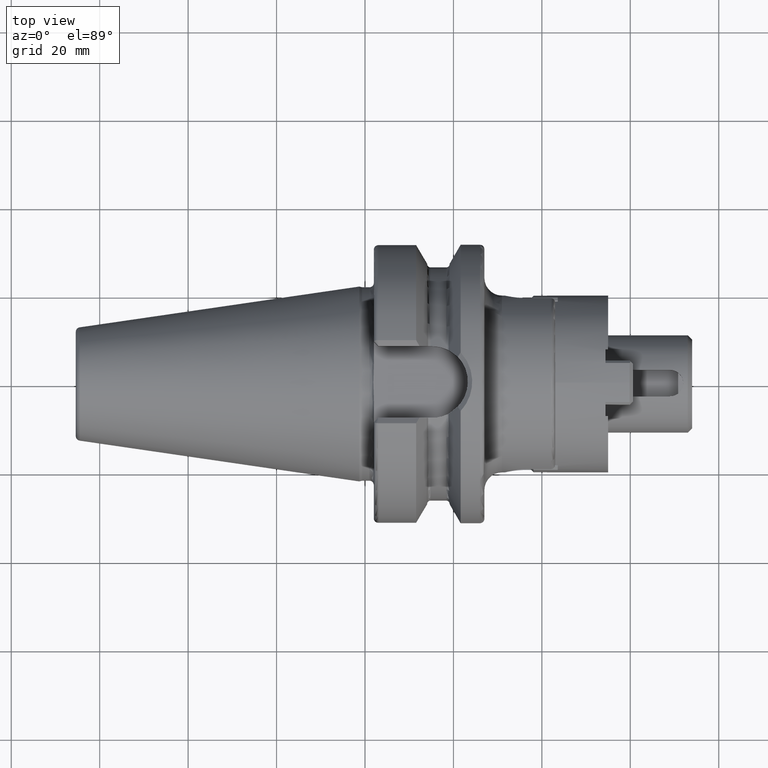
[diagram: clean part render]
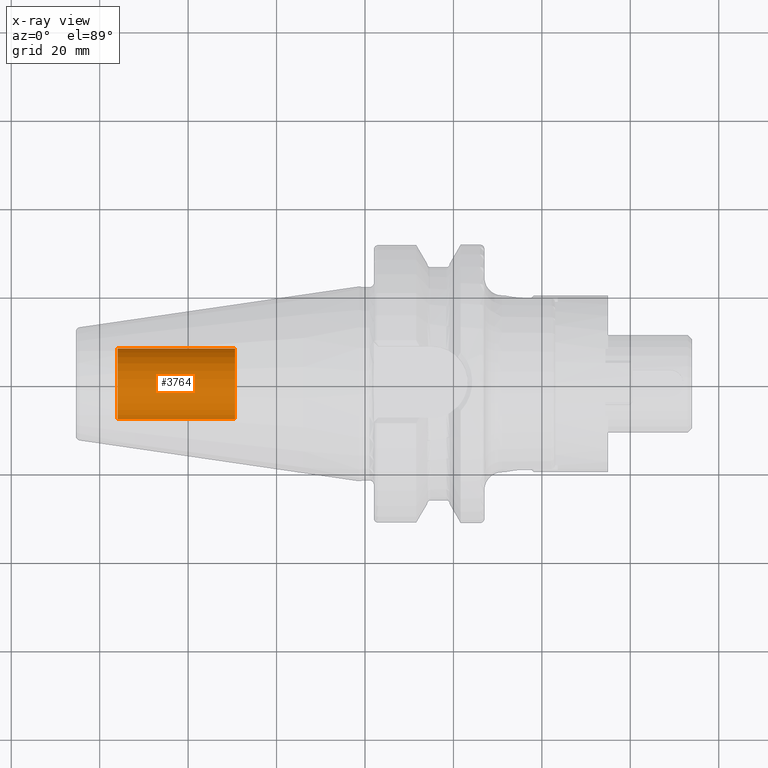
[diagram: x-ray — body ghosted, one internal face saturated and labeled with its STEP entity id]
A machine part, top view, then the same camera in x-ray: the body is ghosted and one INTERNAL B-rep face — a face not visible from any outside direction — is saturated and labeled: STEP entity #3764.
In plain terms, the highlighted cylindrical surface (edge-blend (fillet) strip) has radius 8.0028 mm, axis along (1, 0, 0).
Its self-contained STEP definition (entity closure, byte-faithful):
#3690=DIRECTION('',(1.E0,0.E0,0.E0));
#3691=VECTOR('',#3690,2.655E1);
#3692=CARTESIAN_POINT('',(-5.595E1,-8.00275E0,0.E0));
#3693=LINE('',#3692,#3691);
#3694=CARTESIAN_POINT('',(-5.595E1,0.E0,0.E0));
#3695=DIRECTION('',(-1.E0,0.E0,0.E0));
#3696=DIRECTION('',(0.E0,-1.E0,0.E0));
#3697=AXIS2_PLACEMENT_3D('',#3694,#3695,#3696);
#3699=DIRECTION('',(1.E0,0.E0,0.E0));
#3700=VECTOR('',#3699,2.655E1);
#3701=CARTESIAN_POINT('',(-5.595E1,8.00275E0,0.E0));
#3702=LINE('',#3701,#3700);
#3703=CARTESIAN_POINT('',(-2.94E1,0.E0,0.E0));
#3704=DIRECTION('',(1.E0,0.E0,0.E0));
#3705=DIRECTION('',(0.E0,1.E0,0.E0));
#3706=AXIS2_PLACEMENT_3D('',#3703,#3704,#3705);
#3723=CARTESIAN_POINT('',(-5.595E1,8.00275E0,0.E0));
#3724=CARTESIAN_POINT('',(-5.595E1,-8.00275E0,0.E0));
#3725=VERTEX_POINT('',#3723);
#3726=VERTEX_POINT('',#3724);
#3727=CARTESIAN_POINT('',(-2.94E1,8.00275E0,0.E0));
#3728=CARTESIAN_POINT('',(-2.94E1,-8.00275E0,0.E0));
#3729=VERTEX_POINT('',#3727);
#3730=VERTEX_POINT('',#3728);
#3751=CARTESIAN_POINT('',(-5.595E1,0.E0,0.E0));
#3752=DIRECTION('',(1.E0,0.E0,0.E0));
#3753=DIRECTION('',(0.E0,1.E0,0.E0));
#3754=AXIS2_PLACEMENT_3D('',#3751,#3752,#3753);
#3755=CYLINDRICAL_SURFACE('',#3754,8.00275E0);
#3757=ORIENTED_EDGE('',*,*,#3756,.T.);
#3758=ORIENTED_EDGE('',*,*,#3746,.T.);
#3760=ORIENTED_EDGE('',*,*,#3759,.T.);
#3761=ORIENTED_EDGE('',*,*,#3742,.F.);
#3762=EDGE_LOOP('',(#3757,#3758,#3760,#3761));
#3763=FACE_OUTER_BOUND('',#3762,.F.);
#3764=ADVANCED_FACE('',(#3763),#3755,.T.);
#3698=CIRCLE('',#3697,8.00275E0);
#3707=CIRCLE('',#3706,8.00275E0);
#3742=EDGE_CURVE('',#3726,#3730,#3693,.T.);
#3746=EDGE_CURVE('',#3725,#3729,#3702,.T.);
#3756=EDGE_CURVE('',#3726,#3725,#3698,.T.);
#3759=EDGE_CURVE('',#3729,#3730,#3707,.T.);